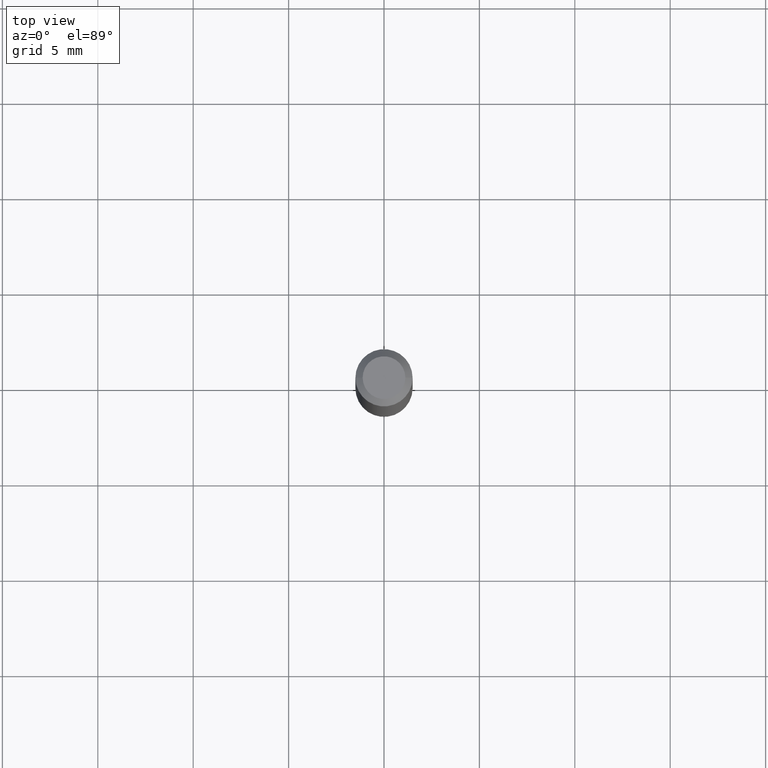
[diagram: clean part render]
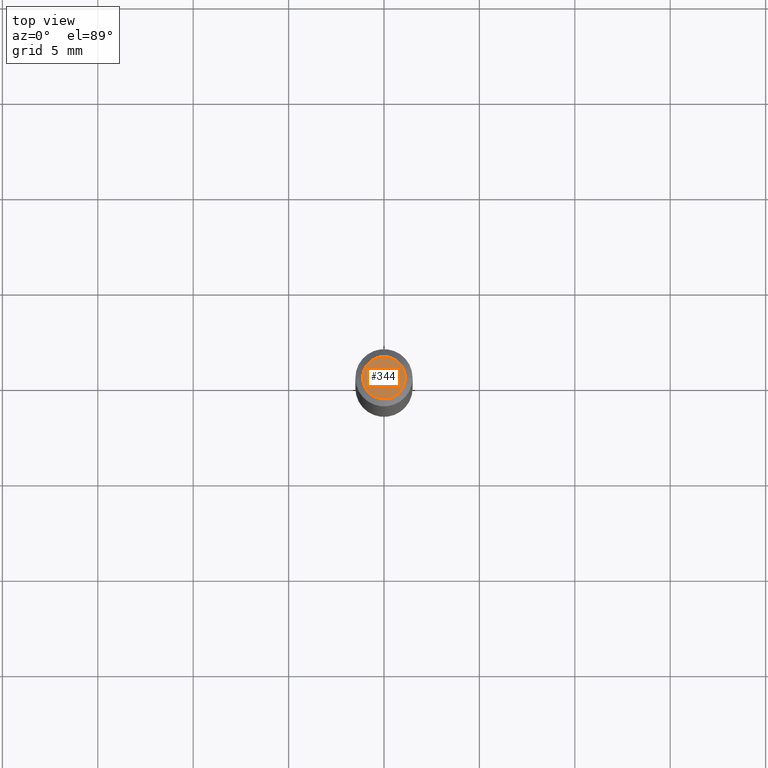
[diagram: same view with one face highlighted and labeled with its STEP entity id]
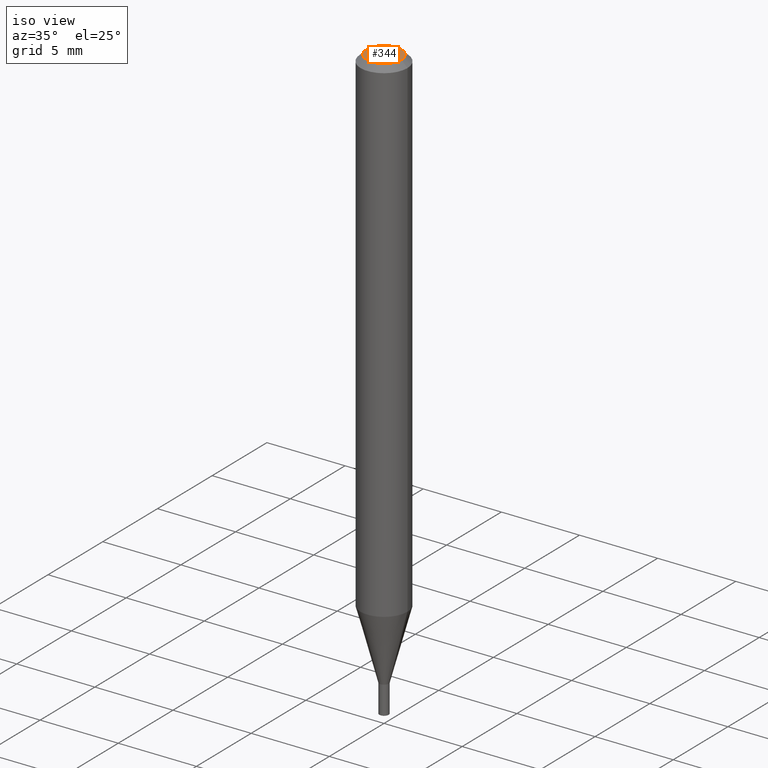
[diagram: same view with one face highlighted and labeled with its STEP entity id]
A machine part, top view. The second image highlights one B-rep face of the part: STEP entity #344.
A second angle (iso view) of the same face is appended — the face is thin or edge-on in the first view.
In plain terms, the highlighted planar face has unit normal (0, -0, -1).
Its self-contained STEP definition (entity closure, byte-faithful):
#74 = CIRCLE ( 'NONE', #258, 0.04404999999999999888 ) ;
#77 = EDGE_CURVE ( 'NONE', #343, #85, #74, .T. ) ;
#85 = VERTEX_POINT ( 'NONE', #340 ) ;
#96 = DIRECTION ( 'NONE',  ( 1.000000000000000000, -6.982962677686265922E-15, 4.888540261209747396E-29 ) ) ;
#100 = DIRECTION ( 'NONE',  ( -2.445468806185136597E-29, 3.491481338843145583E-15, 1.000000000000000000 ) ) ;
#103 = EDGE_CURVE ( 'NONE', #85, #343, #266, .T. ) ;
#108 = FACE_OUTER_BOUND ( 'NONE', #357, .T. ) ;
#170 = AXIS2_PLACEMENT_3D ( 'NONE', #310, #100, #242 ) ;
#223 = AXIS2_PLACEMENT_3D ( 'NONE', #353, #388, #319 ) ;
#226 = ORIENTED_EDGE ( 'NONE', *, *, #103, .T. ) ;
#237 = DIRECTION ( 'NONE',  ( -2.445468806185136597E-29, 3.491481338843145583E-15, 1.000000000000000000 ) ) ;
#242 = DIRECTION ( 'NONE',  ( 1.000000000000000000, -6.982962677686265922E-15, 4.888540261209747396E-29 ) ) ;
#258 = AXIS2_PLACEMENT_3D ( 'NONE', #442, #237, #96 ) ;
#266 = CIRCLE ( 'NONE', #170, 0.04404999999999999888 ) ;
#283 = PLANE ( 'NONE',  #223 ) ;
#290 = CARTESIAN_POINT ( 'NONE',  ( 0.04404999999999999888, -3.798447818264462051E-16, -1.195205392989686680E-16 ) ) ;
#310 = CARTESIAN_POINT ( 'NONE',  ( 2.922837505540584805E-45, -4.173037325708263829E-31, -1.195205392989710839E-16 ) ) ;
#319 = DIRECTION ( 'NONE',  ( -1.000000000000000000, 6.982962677686265922E-15, -4.876176775795935793E-29 ) ) ;
#340 = CARTESIAN_POINT ( 'NONE',  ( -0.04404999999999999888, 3.337856159934032167E-16, -1.195205392989733272E-16 ) ) ;
#343 = VERTEX_POINT ( 'NONE', #290 ) ;
#344 = ADVANCED_FACE ( 'NONE', ( #108 ), #283, .F. ) ;
#353 = CARTESIAN_POINT ( 'NONE',  ( 3.075995059520799729E-16, 0.04404999999999999888, -2.135600226255260954E-16 ) ) ;
#357 = EDGE_LOOP ( 'NONE', ( #226, #400 ) ) ;
#388 = DIRECTION ( 'NONE',  ( 2.438088387897960049E-29, -3.491481338843145188E-15, -1.000000000000000000 ) ) ;
#400 = ORIENTED_EDGE ( 'NONE', *, *, #77, .T. ) ;
#442 = CARTESIAN_POINT ( 'NONE',  ( 2.922837505540584805E-45, -4.173037325708263829E-31, -1.195205392989710839E-16 ) ) ;